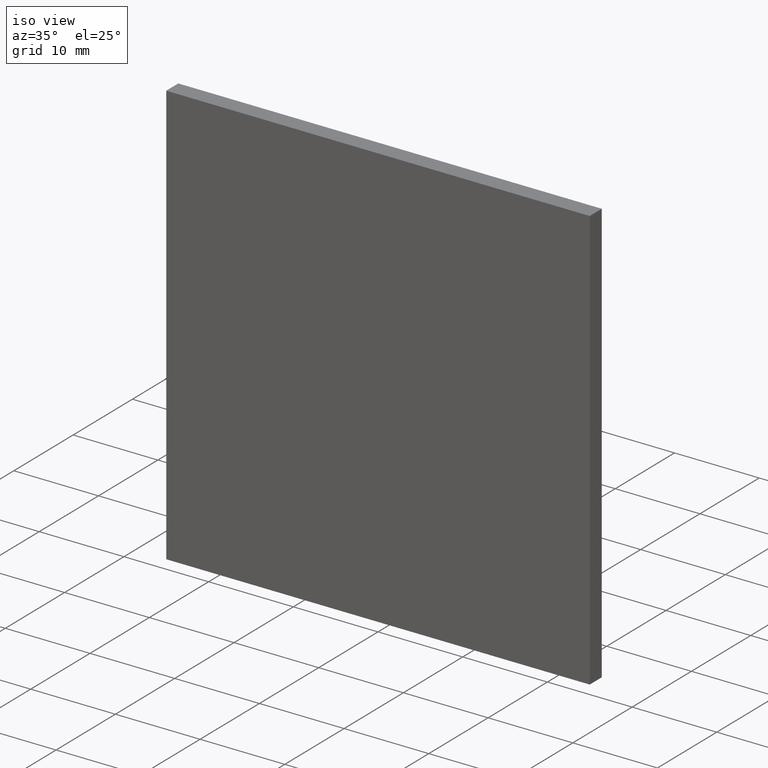
[diagram: clean part render]
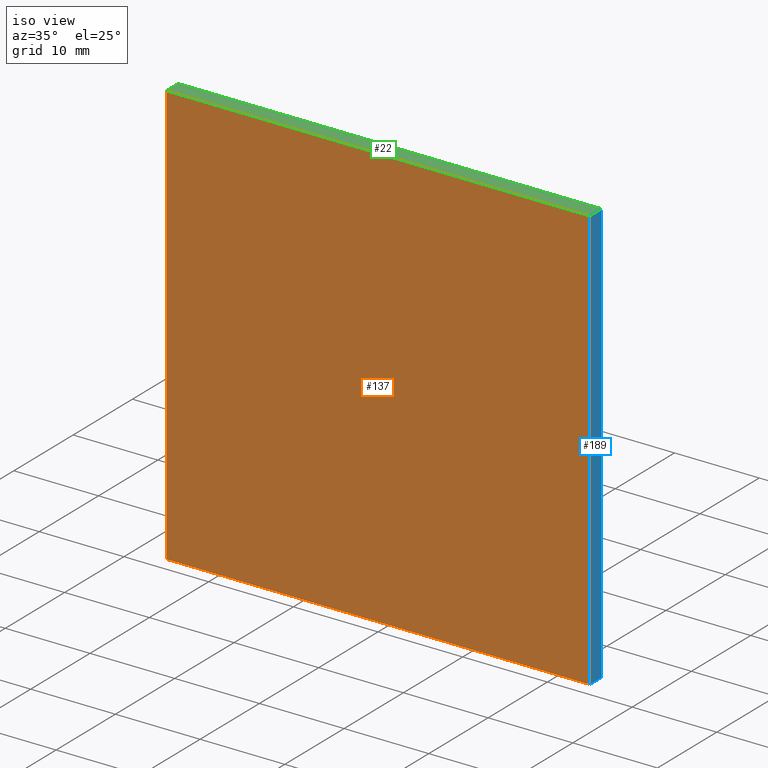
[diagram: same view with three faces highlighted in distinct colors, each labeled with its STEP entity id]
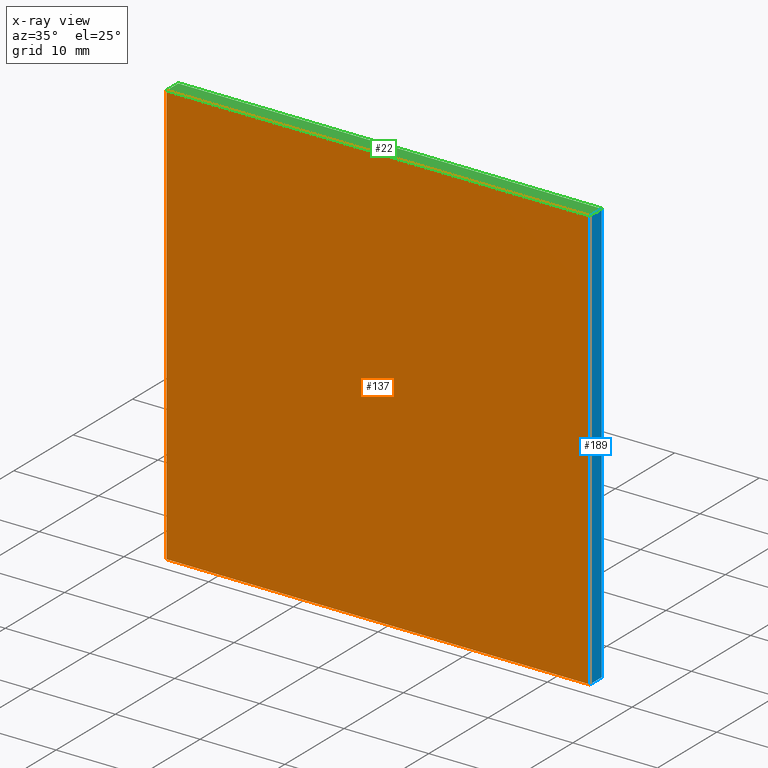
[diagram: x-ray of the same camera — body ghosted, the three highlighted faces saturated]
A machine part, iso view with three faces highlighted in distinct colors.
The next image is the same camera in x-ray (body ghosted, the three faces saturated) — at least one of them is partly hidden behind the body in this view.
Their STEP definitions:

[orange] entity #137 — the highlighted planar face has unit normal (0, -1, 0).
#3 = VECTOR ( 'NONE', #145, 1000.000000000000000 ) ;
#10 = EDGE_CURVE ( 'NONE', #57, #164, #79, .T. ) ;
#12 = ORIENTED_EDGE ( 'NONE', *, *, #179, .F. ) ;
#14 = DIRECTION ( 'NONE',  ( -1.000000000000000000, -0.0000000000000000000, -0.0000000000000000000 ) ) ;
#15 = VECTOR ( 'NONE', #14, 1000.000000000000000 ) ;
#16 = CARTESIAN_POINT ( 'NONE',  ( -25.00000000000000400, 0.0000000000000000000, 25.00000000000000000 ) ) ;
#17 = AXIS2_PLACEMENT_3D ( 'NONE', #162, #128, #201 ) ;
#23 = ORIENTED_EDGE ( 'NONE', *, *, #10, .F. ) ;
#24 = CARTESIAN_POINT ( 'NONE',  ( -25.00000000000000400, 0.0000000000000000000, 25.00000000000000000 ) ) ;
#26 = PLANE ( 'NONE',  #17 ) ;
#29 = ORIENTED_EDGE ( 'NONE', *, *, #61, .F. ) ;
#53 = EDGE_LOOP ( 'NONE', ( #12, #23, #143, #29 ) ) ;
#56 = DIRECTION ( 'NONE',  ( -0.0000000000000000000, -0.0000000000000000000, 1.000000000000000000 ) ) ;
#57 = VERTEX_POINT ( 'NONE', #16 ) ;
#60 = CARTESIAN_POINT ( 'NONE',  ( -25.00000000000000400, 0.0000000000000000000, -25.00000000000000000 ) ) ;
#61 = EDGE_CURVE ( 'NONE', #109, #97, #66, .T. ) ;
#66 = LINE ( 'NONE', #60, #15 ) ;
#75 = CARTESIAN_POINT ( 'NONE',  ( 24.99999999999999600, 0.0000000000000000000, 25.00000000000000000 ) ) ;
#79 = LINE ( 'NONE', #24, #136 ) ;
#87 = CARTESIAN_POINT ( 'NONE',  ( -25.00000000000000400, 0.0000000000000000000, 25.00000000000000000 ) ) ;
#93 = EDGE_CURVE ( 'NONE', #97, #57, #101, .T. ) ;
#97 = VERTEX_POINT ( 'NONE', #202 ) ;
#98 = LINE ( 'NONE', #122, #3 ) ;
#101 = LINE ( 'NONE', #87, #148 ) ;
#109 = VERTEX_POINT ( 'NONE', #132 ) ;
#122 = CARTESIAN_POINT ( 'NONE',  ( 24.99999999999999600, 0.0000000000000000000, 25.00000000000000000 ) ) ;
#128 = DIRECTION ( 'NONE',  ( 0.0000000000000000000, -1.000000000000000000, 0.0000000000000000000 ) ) ;
#132 = CARTESIAN_POINT ( 'NONE',  ( 24.99999999999999600, 0.0000000000000000000, -25.00000000000000000 ) ) ;
#136 = VECTOR ( 'NONE', #167, 1000.000000000000000 ) ;
#137 = ADVANCED_FACE ( 'NONE', ( #182 ), #26, .T. ) ;
#143 = ORIENTED_EDGE ( 'NONE', *, *, #93, .F. ) ;
#145 = DIRECTION ( 'NONE',  ( 0.0000000000000000000, 0.0000000000000000000, -1.000000000000000000 ) ) ;
#148 = VECTOR ( 'NONE', #56, 1000.000000000000000 ) ;
#162 = CARTESIAN_POINT ( 'NONE',  ( 0.0000000000000000000, 0.0000000000000000000, 0.0000000000000000000 ) ) ;
#164 = VERTEX_POINT ( 'NONE', #75 ) ;
#167 = DIRECTION ( 'NONE',  ( 1.000000000000000000, 0.0000000000000000000, 0.0000000000000000000 ) ) ;
#179 = EDGE_CURVE ( 'NONE', #164, #109, #98, .T. ) ;
#182 = FACE_OUTER_BOUND ( 'NONE', #53, .T. ) ;
#201 = DIRECTION ( 'NONE',  ( 0.0000000000000000000, -0.0000000000000000000, -1.000000000000000000 ) ) ;
#202 = CARTESIAN_POINT ( 'NONE',  ( -25.00000000000000400, 0.0000000000000000000, -25.00000000000000000 ) ) ;

[blue] entity #189 — the highlighted planar face has unit normal (-1, 0, 0).
#1 = ORIENTED_EDGE ( 'NONE', *, *, #134, .F. ) ;
#3 = VECTOR ( 'NONE', #145, 1000.000000000000000 ) ;
#4 = CARTESIAN_POINT ( 'NONE',  ( 24.99999999999999600, 2.029999999999999800, 25.00000000000000000 ) ) ;
#8 = LINE ( 'NONE', #135, #195 ) ;
#19 = CARTESIAN_POINT ( 'NONE',  ( 24.99999999999999600, 2.029999999999999800, 25.00000000000000000 ) ) ;
#21 = ORIENTED_EDGE ( 'NONE', *, *, #179, .T. ) ;
#28 = PLANE ( 'NONE',  #40 ) ;
#32 = VECTOR ( 'NONE', #154, 1000.000000000000000 ) ;
#40 = AXIS2_PLACEMENT_3D ( 'NONE', #50, #90, #157 ) ;
#50 = CARTESIAN_POINT ( 'NONE',  ( 24.99999999999999600, 2.029999999999999800, 25.00000000000000000 ) ) ;
#51 = FACE_OUTER_BOUND ( 'NONE', #95, .T. ) ;
#65 = LINE ( 'NONE', #19, #32 ) ;
#70 = DIRECTION ( 'NONE',  ( 0.0000000000000000000, 0.0000000000000000000, -1.000000000000000000 ) ) ;
#75 = CARTESIAN_POINT ( 'NONE',  ( 24.99999999999999600, 0.0000000000000000000, 25.00000000000000000 ) ) ;
#84 = CARTESIAN_POINT ( 'NONE',  ( 24.99999999999999600, 2.029999999999999800, -25.00000000000000000 ) ) ;
#88 = VECTOR ( 'NONE', #125, 1000.000000000000000 ) ;
#90 = DIRECTION ( 'NONE',  ( -1.000000000000000000, 0.0000000000000000000, 0.0000000000000000000 ) ) ;
#95 = EDGE_LOOP ( 'NONE', ( #21, #1, #115, #168 ) ) ;
#98 = LINE ( 'NONE', #122, #3 ) ;
#107 = CARTESIAN_POINT ( 'NONE',  ( 24.99999999999999600, 2.029999999999999800, -25.00000000000000000 ) ) ;
#109 = VERTEX_POINT ( 'NONE', #132 ) ;
#115 = ORIENTED_EDGE ( 'NONE', *, *, #186, .F. ) ;
#122 = CARTESIAN_POINT ( 'NONE',  ( 24.99999999999999600, 0.0000000000000000000, 25.00000000000000000 ) ) ;
#125 = DIRECTION ( 'NONE',  ( -0.0000000000000000000, -1.000000000000000000, -0.0000000000000000000 ) ) ;
#132 = CARTESIAN_POINT ( 'NONE',  ( 24.99999999999999600, 0.0000000000000000000, -25.00000000000000000 ) ) ;
#134 = EDGE_CURVE ( 'NONE', #152, #109, #158, .T. ) ;
#135 = CARTESIAN_POINT ( 'NONE',  ( 24.99999999999999600, 2.029999999999999800, 25.00000000000000000 ) ) ;
#141 = EDGE_CURVE ( 'NONE', #194, #164, #65, .T. ) ;
#145 = DIRECTION ( 'NONE',  ( 0.0000000000000000000, 0.0000000000000000000, -1.000000000000000000 ) ) ;
#152 = VERTEX_POINT ( 'NONE', #107 ) ;
#154 = DIRECTION ( 'NONE',  ( -0.0000000000000000000, -1.000000000000000000, -0.0000000000000000000 ) ) ;
#157 = DIRECTION ( 'NONE',  ( 0.0000000000000000000, 0.0000000000000000000, 1.000000000000000000 ) ) ;
#158 = LINE ( 'NONE', #84, #88 ) ;
#164 = VERTEX_POINT ( 'NONE', #75 ) ;
#168 = ORIENTED_EDGE ( 'NONE', *, *, #141, .T. ) ;
#179 = EDGE_CURVE ( 'NONE', #164, #109, #98, .T. ) ;
#186 = EDGE_CURVE ( 'NONE', #194, #152, #8, .T. ) ;
#189 = ADVANCED_FACE ( 'NONE', ( #51 ), #28, .F. ) ;
#194 = VERTEX_POINT ( 'NONE', #4 ) ;
#195 = VECTOR ( 'NONE', #70, 1000.000000000000000 ) ;

[green] entity #22 — the highlighted planar face has unit normal (0, 0, -1).
#4 = CARTESIAN_POINT ( 'NONE',  ( 24.99999999999999600, 2.029999999999999800, 25.00000000000000000 ) ) ;
#9 = AXIS2_PLACEMENT_3D ( 'NONE', #183, #126, #177 ) ;
#10 = EDGE_CURVE ( 'NONE', #57, #164, #79, .T. ) ;
#16 = CARTESIAN_POINT ( 'NONE',  ( -25.00000000000000400, 0.0000000000000000000, 25.00000000000000000 ) ) ;
#19 = CARTESIAN_POINT ( 'NONE',  ( 24.99999999999999600, 2.029999999999999800, 25.00000000000000000 ) ) ;
#22 = ADVANCED_FACE ( 'NONE', ( #127 ), #191, .F. ) ;
#24 = CARTESIAN_POINT ( 'NONE',  ( -25.00000000000000400, 0.0000000000000000000, 25.00000000000000000 ) ) ;
#32 = VECTOR ( 'NONE', #154, 1000.000000000000000 ) ;
#35 = LINE ( 'NONE', #161, #83 ) ;
#43 = VECTOR ( 'NONE', #144, 1000.000000000000000 ) ;
#46 = EDGE_CURVE ( 'NONE', #146, #194, #63, .T. ) ;
#49 = ORIENTED_EDGE ( 'NONE', *, *, #10, .T. ) ;
#54 = CARTESIAN_POINT ( 'NONE',  ( -25.00000000000000400, 2.029999999999999800, 25.00000000000000000 ) ) ;
#57 = VERTEX_POINT ( 'NONE', #16 ) ;
#59 = DIRECTION ( 'NONE',  ( -0.0000000000000000000, -1.000000000000000000, -0.0000000000000000000 ) ) ;
#63 = LINE ( 'NONE', #54, #43 ) ;
#65 = LINE ( 'NONE', #19, #32 ) ;
#72 = CARTESIAN_POINT ( 'NONE',  ( -25.00000000000000400, 2.029999999999999800, 25.00000000000000000 ) ) ;
#74 = EDGE_LOOP ( 'NONE', ( #49, #193, #120, #190 ) ) ;
#75 = CARTESIAN_POINT ( 'NONE',  ( 24.99999999999999600, 0.0000000000000000000, 25.00000000000000000 ) ) ;
#79 = LINE ( 'NONE', #24, #136 ) ;
#83 = VECTOR ( 'NONE', #59, 1000.000000000000000 ) ;
#120 = ORIENTED_EDGE ( 'NONE', *, *, #46, .F. ) ;
#126 = DIRECTION ( 'NONE',  ( 0.0000000000000000000, 0.0000000000000000000, -1.000000000000000000 ) ) ;
#127 = FACE_OUTER_BOUND ( 'NONE', #74, .T. ) ;
#136 = VECTOR ( 'NONE', #167, 1000.000000000000000 ) ;
#141 = EDGE_CURVE ( 'NONE', #194, #164, #65, .T. ) ;
#144 = DIRECTION ( 'NONE',  ( 1.000000000000000000, 0.0000000000000000000, 0.0000000000000000000 ) ) ;
#146 = VERTEX_POINT ( 'NONE', #72 ) ;
#154 = DIRECTION ( 'NONE',  ( -0.0000000000000000000, -1.000000000000000000, -0.0000000000000000000 ) ) ;
#161 = CARTESIAN_POINT ( 'NONE',  ( -25.00000000000000400, 2.029999999999999800, 25.00000000000000000 ) ) ;
#164 = VERTEX_POINT ( 'NONE', #75 ) ;
#165 = EDGE_CURVE ( 'NONE', #146, #57, #35, .T. ) ;
#167 = DIRECTION ( 'NONE',  ( 1.000000000000000000, 0.0000000000000000000, 0.0000000000000000000 ) ) ;
#177 = DIRECTION ( 'NONE',  ( -1.000000000000000000, 0.0000000000000000000, -0.0000000000000000000 ) ) ;
#183 = CARTESIAN_POINT ( 'NONE',  ( -25.00000000000000400, 2.029999999999999800, 25.00000000000000000 ) ) ;
#190 = ORIENTED_EDGE ( 'NONE', *, *, #165, .T. ) ;
#191 = PLANE ( 'NONE',  #9 ) ;
#193 = ORIENTED_EDGE ( 'NONE', *, *, #141, .F. ) ;
#194 = VERTEX_POINT ( 'NONE', #4 ) ;